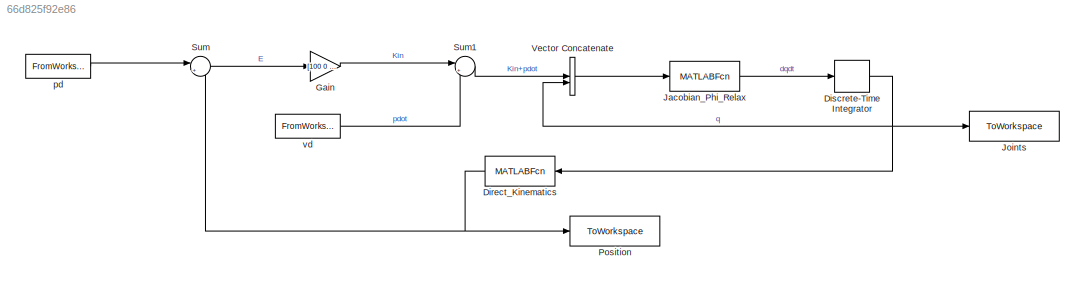
MODEL mdl_66d825f92e86
KIND model
CONFIG AbsTol = auto
CONFIG EnableMultiTasking = off
CONFIG FixedStep = 0.001
CONFIG MaxStep = auto
CONFIG MinStep = auto
CONFIG RelTol = 1e-3
CONFIG SampleTimeConstraint = Unconstrained
CONFIG SolverName = ode1
CONFIG StartTime = 0.0
CONFIG StopTime = 4
BLOCK [MATLABFcn] Direct_Kinematics
  MATLABFcn = direct_kin
  OutputDimensions = 3
  OutputSignalType = real
BLOCK [DiscreteIntegrator] Discrete-Time Integrator
  ICPrevOutput = DiscIntNeverNeededParam
  ICPrevScaledInput = DiscIntNeverNeededParam
  InitialCondition = q0
  InitialConditionSetting = Auto
  SampleTime = Tc
BLOCK [Gain] Gain
  Gain = [100 0 0 ;0 100 0 ;0 0 100]
  Multiplication = Matrix(K*u)
BLOCK [MATLABFcn] Jacobian_Phi_Relax
  MATLABFcn = jacobian_phi_relax
  OutputSignalType = real
BLOCK [ToWorkspace] Joints
  FixptAsFi = on
  MaxDataPoints = inf
  SampleTime = -1
  VariableName = Joints
BLOCK [ToWorkspace] Position
  FixptAsFi = on
  MaxDataPoints = inf
  SampleTime = -1
  VariableName = Position
BLOCK [Sum] Sum
  Inputs = |+-
  NameLocation = top
BLOCK [Sum] Sum1
  Inputs = |++
  NameLocation = top
BLOCK [Concatenate] Vector Concatenate
BLOCK [FromWorkspace] pd
  VariableName = [t,pd]
BLOCK [FromWorkspace] vd
  SampleTime = Tc
  VariableName = [t,pd_dot]
NET Direct_Kinematics:1 -> Position:1, Sum:2
NET Discrete-Time Integrator:1 -> Direct_Kinematics:1, Joints:1, Vector Concatenate:2
LINE Gain:1 -> Sum1:1
LINE Jacobian_Phi_Relax:1 -> Discrete-Time Integrator:1
LINE Sum1:1 -> Vector Concatenate:1
LINE Sum:1 -> Gain:1
LINE Vector Concatenate:1 -> Jacobian_Phi_Relax:1
LINE pd:1 -> Sum:1
LINE vd:1 -> Sum1:2
note: NET lines group one-source signal fan-out (src -> all destinations, sorted); 1:1 wires keep LINE
